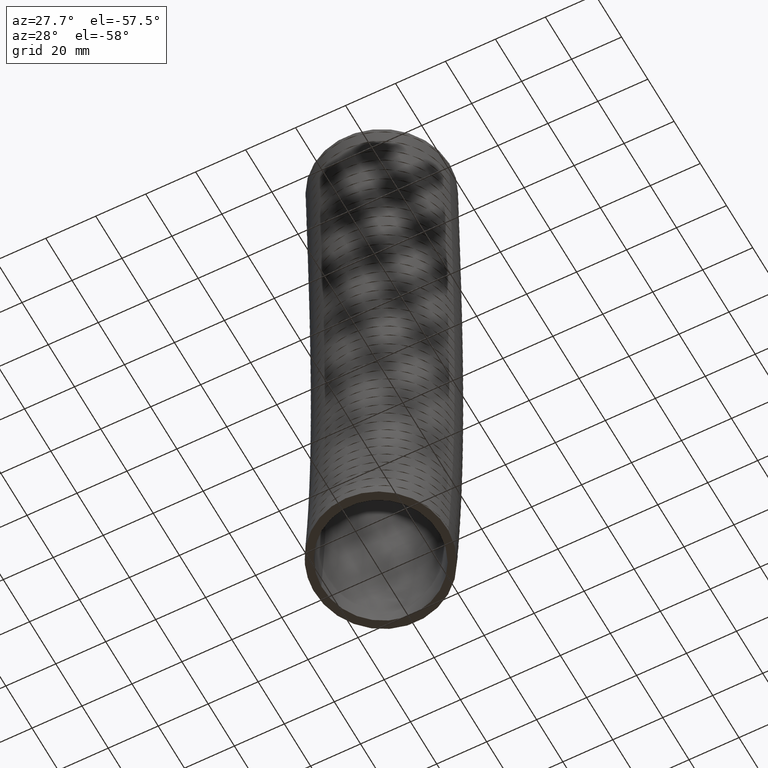
[diagram: clean part render]
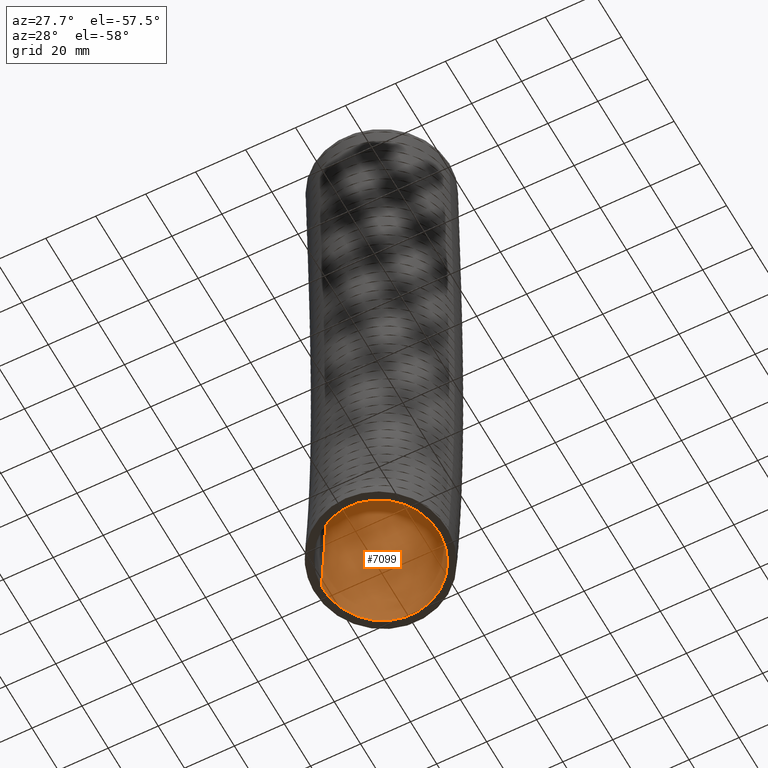
[diagram: same view with one face highlighted and labeled with its STEP entity id]
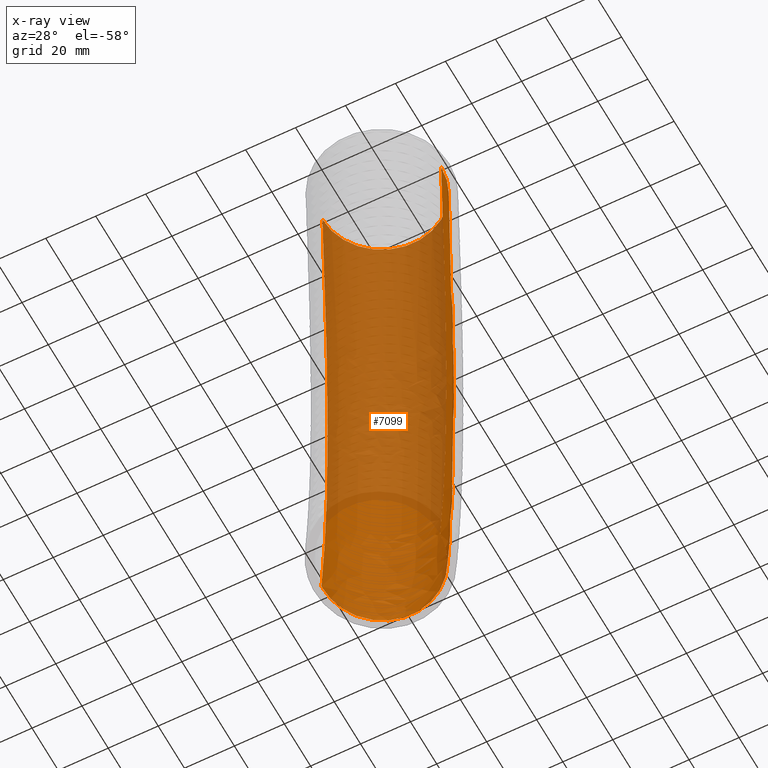
[diagram: x-ray of the same camera — body ghosted, the highlighted face saturated]
A machine part, auxiliary view. The second image highlights one B-rep face of the part: STEP entity #7099.
The next image is the same camera in x-ray: the body ghosted, the highlighted face saturated — about 68% of this face is hidden behind the body in this view.
In plain terms, the highlighted face is a freeform B-spline surface patch.
Its self-contained STEP definition (entity closure, byte-faithful):
#7079 = ORIENTED_EDGE ( 'NONE', *, *, #7105, .T. ) ;
#7081 = EDGE_CURVE ( 'NONE', #7103, #7100, #19690, .T. ) ;
#7085 = EDGE_CURVE ( 'NONE', #7100, #7114, #19679, .T. ) ;
#7086 = EDGE_LOOP ( 'NONE', ( #7087, #7079, #7094, #7091 ) ) ;
#7087 = ORIENTED_EDGE ( 'NONE', *, *, #7098, .T. ) ;
#7091 = ORIENTED_EDGE ( 'NONE', *, *, #7081, .F. ) ;
#7094 = ORIENTED_EDGE ( 'NONE', *, *, #7085, .F. ) ;
#7098 = EDGE_CURVE ( 'NONE', #7103, #7106, #19668, .T. ) ;
#7099 = ADVANCED_FACE ( 'NONE', ( #19662 ), #19691, .F. ) ;
#7100 = VERTEX_POINT ( 'NONE', #19693 ) ;
#7103 = VERTEX_POINT ( 'NONE', #19756 ) ;
#7105 = EDGE_CURVE ( 'NONE', #7106, #7114, #19753, .T. ) ;
#7106 = VERTEX_POINT ( 'NONE', #19755 ) ;
#7114 = VERTEX_POINT ( 'NONE', #19906 ) ;
#19662 = FACE_OUTER_BOUND ( 'NONE', #7086, .T. ) ;
#19663 = DIRECTION ( 'NONE',  ( 1.000000000000000000, 0.0000000000000000000, 0.0000000000000000000 ) ) ;
#19664 = DIRECTION ( 'NONE',  ( 0.0000000000000000000, 0.0000000000000000000, 1.000000000000000000 ) ) ;
#19666 = CARTESIAN_POINT ( 'NONE',  ( 0.0000000000000000000, 0.0000000000000000000, 0.0000000000000000000 ) ) ;
#19667 = AXIS2_PLACEMENT_3D ( 'NONE', #19666, #19664, #19663 ) ;
#19668 = CIRCLE ( 'NONE', #19667, 0.9350000000000001600 ) ;
#19675 = DIRECTION ( 'NONE',  ( 1.000000000000000000, 0.0000000000000000000, 0.0000000000000000000 ) ) ;
#19676 = DIRECTION ( 'NONE',  ( 0.0000000000000000000, 0.1340072641038699800, 0.9909803495364555300 ) ) ;
#19677 = CARTESIAN_POINT ( 'NONE',  ( 0.0000000000000000000, -0.02999999999999988400, -9.569999999999996700 ) ) ;
#19678 = AXIS2_PLACEMENT_3D ( 'NONE', #19677, #19676, #19675 ) ;
#19679 = CIRCLE ( 'NONE', #19678, 0.9350000000000000500 ) ;
#19683 = CARTESIAN_POINT ( 'NONE',  ( 0.9350000000000000500, -0.02999999999999988400, -9.569999999999996700 ) ) ;
#19684 = CARTESIAN_POINT ( 'NONE',  ( 0.9349999999999998300, -0.01282253193203170200, -9.380021792021830500 ) ) ;
#19685 = CARTESIAN_POINT ( 'NONE',  ( 0.9349999999999997200, 0.1136175452062334300, -7.981628316551387500 ) ) ;
#19686 = CARTESIAN_POINT ( 'NONE',  ( 0.9349999999999997200, 0.2122813731536104000, -4.795410929656176400 ) ) ;
#19687 = CARTESIAN_POINT ( 'NONE',  ( 0.9350000000000001600, 0.07923988111738790300, -1.790019474294677300 ) ) ;
#19688 = CARTESIAN_POINT ( 'NONE',  ( 0.9350000000000001600, 0.0000000000000000000, 0.0000000000000000000 ) ) ;
#19690 = B_SPLINE_CURVE_WITH_KNOTS ( 'NONE', 3,
 ( #19688, #19687, #19686, #19685, #19684, #19683 ),
 .UNSPECIFIED., .F., .F.,
 ( 4, 1, 1, 4 ),
 ( 0.0000000000000000000, 0.5600000000000001600, 0.9402239691641354200, 1.000000000000000000 ),
 .UNSPECIFIED. ) ;
#19691 =( BOUNDED_SURFACE ( )  B_SPLINE_SURFACE ( 3, 3, ( 
 ( #19734, #19733, #19732, #19731, #19730, #19729 ),
 ( #19728, #19727, #19726, #19725, #19724, #19723 ),
 ( #19722, #19721, #19720, #19719, #19718, #19717 ),
 ( #19716, #19715, #19714, #19713, #19712, #19711 ),
 ( #19710, #19709, #19708, #19707, #19706, #19705 ),
 ( #19704, #19768, #19767, #19766, #19765, #19764 ),
 ( #19763, #19762, #19761, #19760, #19759, #19758 ) ),
 .UNSPECIFIED., .F., .F., .F. ) 
 B_SPLINE_SURFACE_WITH_KNOTS ( ( 4, 3, 4 ),
 ( 4, 1, 1, 4 ),
 ( 0.0000000000000000000, 0.5000000000000000000, 1.000000000000000000 ),
 ( 0.0000000000000000000, 0.5600000000000001600, 0.9402239691641354200, 1.000000000000000000 ),
 .UNSPECIFIED. ) 
 GEOMETRIC_REPRESENTATION_ITEM ( )  RATIONAL_B_SPLINE_SURFACE ( (
 ( 1.000000000000000000, 1.000000000000000000, 1.000000000000000200, 1.000000000000000200, 1.000000000000000200, 1.000000000000000200),
 ( 0.3333333333333333100, 0.3333333333333333100, 0.3333333333333332600, 0.3333333333333334300, 0.3333333333333333700, 0.3333333333333333700),
 ( 0.3333333333333333100, 0.3333333333333333100, 0.3333333333333332600, 0.3333333333333334300, 0.3333333333333333700, 0.3333333333333333700),
 ( 1.000000000000000000, 1.000000000000000000, 1.000000000000000200, 1.000000000000000200, 1.000000000000000200, 1.000000000000000200),
 ( 0.3333333333333333100, 0.3333333333333333100, 0.3333333333333332600, 0.3333333333333334300, 0.3333333333333333700, 0.3333333333333333700),
 ( 0.3333333333333333100, 0.3333333333333333100, 0.3333333333333332600, 0.3333333333333334300, 0.3333333333333333700, 0.3333333333333333700),
 ( 1.000000000000000000, 1.000000000000000000, 1.000000000000000200, 1.000000000000000200, 1.000000000000000200, 1.000000000000000200) ) ) 
 REPRESENTATION_ITEM ( '' )  SURFACE ( )  );
#19693 = CARTESIAN_POINT ( 'NONE',  ( 0.9350000000000000500, -0.02999999999999988400, -9.569999999999996700 ) ) ;
#19704 = CARTESIAN_POINT ( 'NONE',  ( 0.9350000000000001600, 1.870000000000000300, 0.0000000000000000000 ) ) ;
#19705 = CARTESIAN_POINT ( 'NONE',  ( -0.9349999999999997200, 1.823133253633172600, -9.820593583874233100 ) ) ;
#19706 = CARTESIAN_POINT ( 'NONE',  ( -0.9349999999999997200, 1.841124632526707900, -9.622043957505537600 ) ) ;
#19707 = CARTESIAN_POINT ( 'NONE',  ( -0.9349999999999995000, 1.973555752533524100, -8.160557900625834200 ) ) ;
#19708 = CARTESIAN_POINT ( 'NONE',  ( -0.9349999999999995000, 2.084916673329968900, -4.837829543110593100 ) ) ;
#19709 = CARTESIAN_POINT ( 'NONE',  ( -0.9349999999999998300, 1.950223579637805300, -1.805853392444716400 ) ) ;
#19710 = CARTESIAN_POINT ( 'NONE',  ( -0.9349999999999998300, 1.870000000000000300, 0.0000000000000000000 ) ) ;
#19711 = CARTESIAN_POINT ( 'NONE',  ( -0.9349999999999999400, -0.02999999999999981500, -9.569999999999996700 ) ) ;
#19712 = CARTESIAN_POINT ( 'NONE',  ( -0.9349999999999999400, -0.01282253193203158400, -9.380021792021830500 ) ) ;
#19713 = CARTESIAN_POINT ( 'NONE',  ( -0.9349999999999998300, 0.1136175452062335400, -7.981628316551387500 ) ) ;
#19714 = CARTESIAN_POINT ( 'NONE',  ( -0.9349999999999998300, 0.2122813731536105100, -4.795410929656176400 ) ) ;
#19715 = CARTESIAN_POINT ( 'NONE',  ( -0.9350000000000001600, 0.07923988111738800000, -1.790019474294677300 ) ) ;
#19716 = CARTESIAN_POINT ( 'NONE',  ( -0.9350000000000001600, 1.145044757202775300E-016, 0.0000000000000000000 ) ) ;
#19717 = CARTESIAN_POINT ( 'NONE',  ( -0.9350000000000001600, -1.883133253633172400, -9.319406416125758600 ) ) ;
#19718 = CARTESIAN_POINT ( 'NONE',  ( -0.9350000000000001600, -1.866769696390770700, -9.137999626538126900 ) ) ;
#19719 = CARTESIAN_POINT ( 'NONE',  ( -0.9350000000000000500, -1.746320662121057400, -7.802698732476939000 ) ) ;
#19720 = CARTESIAN_POINT ( 'NONE',  ( -0.9350000000000002800, -1.660353927022747600, -4.752992316201762400 ) ) ;
#19721 = CARTESIAN_POINT ( 'NONE',  ( -0.9350000000000001600, -1.791743817403029600, -1.774185556144637100 ) ) ;
#19722 = CARTESIAN_POINT ( 'NONE',  ( -0.9350000000000001600, -1.870000000000000300, 0.0000000000000000000 ) ) ;
#19723 = CARTESIAN_POINT ( 'NONE',  ( 0.9350000000000000500, -1.883133253633172400, -9.319406416125758600 ) ) ;
#19724 = CARTESIAN_POINT ( 'NONE',  ( 0.9350000000000000500, -1.866769696390770700, -9.137999626538126900 ) ) ;
#19725 = CARTESIAN_POINT ( 'NONE',  ( 0.9349999999999998300, -1.746320662121057400, -7.802698732476939000 ) ) ;
#19726 = CARTESIAN_POINT ( 'NONE',  ( 0.9349999999999999400, -1.660353927022747600, -4.752992316201762400 ) ) ;
#19727 = CARTESIAN_POINT ( 'NONE',  ( 0.9350000000000001600, -1.791743817403029600, -1.774185556144637100 ) ) ;
#19728 = CARTESIAN_POINT ( 'NONE',  ( 0.9350000000000001600, -1.870000000000000300, 0.0000000000000000000 ) ) ;
#19729 = CARTESIAN_POINT ( 'NONE',  ( 0.9349999999999999400, -0.02999999999999993000, -9.569999999999996700 ) ) ;
#19730 = CARTESIAN_POINT ( 'NONE',  ( 0.9349999999999999400, -0.01282253193203170200, -9.380021792021830500 ) ) ;
#19731 = CARTESIAN_POINT ( 'NONE',  ( 0.9349999999999998300, 0.1136175452062334300, -7.981628316551387500 ) ) ;
#19732 = CARTESIAN_POINT ( 'NONE',  ( 0.9349999999999998300, 0.2122813731536103700, -4.795410929656176400 ) ) ;
#19733 = CARTESIAN_POINT ( 'NONE',  ( 0.9350000000000001600, 0.07923988111738790300, -1.790019474294677300 ) ) ;
#19734 = CARTESIAN_POINT ( 'NONE',  ( 0.9350000000000001600, 0.0000000000000000000, 0.0000000000000000000 ) ) ;
#19743 = CARTESIAN_POINT ( 'NONE',  ( -0.9350000000000001600, -0.02999999999999995700, -9.569999999999996700 ) ) ;
#19744 = CARTESIAN_POINT ( 'NONE',  ( -0.9349999999999998300, -0.01282253193203158500, -9.380021792021830500 ) ) ;
#19745 = CARTESIAN_POINT ( 'NONE',  ( -0.9349999999999997200, 0.1136175452062335600, -7.981628316551387500 ) ) ;
#19746 = CARTESIAN_POINT ( 'NONE',  ( -0.9349999999999997200, 0.2122813731536105400, -4.795410929656176400 ) ) ;
#19747 = CARTESIAN_POINT ( 'NONE',  ( -0.9350000000000001600, 0.07923988111738800000, -1.790019474294677300 ) ) ;
#19748 = CARTESIAN_POINT ( 'NONE',  ( -0.9350000000000001600, 1.145044757202775300E-016, 0.0000000000000000000 ) ) ;
#19753 = B_SPLINE_CURVE_WITH_KNOTS ( 'NONE', 3,
 ( #19748, #19747, #19746, #19745, #19744, #19743 ),
 .UNSPECIFIED., .F., .F.,
 ( 4, 1, 1, 4 ),
 ( 0.0000000000000000000, 0.5600000000000001600, 0.9402239691641354200, 1.000000000000000000 ),
 .UNSPECIFIED. ) ;
#19755 = CARTESIAN_POINT ( 'NONE',  ( -0.9350000000000001600, 1.145044757202775300E-016, 0.0000000000000000000 ) ) ;
#19756 = CARTESIAN_POINT ( 'NONE',  ( 0.9350000000000001600, 0.0000000000000000000, 0.0000000000000000000 ) ) ;
#19758 = CARTESIAN_POINT ( 'NONE',  ( 0.9349999999999999400, -0.02999999999999993000, -9.569999999999996700 ) ) ;
#19759 = CARTESIAN_POINT ( 'NONE',  ( 0.9349999999999999400, -0.01282253193203170200, -9.380021792021830500 ) ) ;
#19760 = CARTESIAN_POINT ( 'NONE',  ( 0.9349999999999998300, 0.1136175452062334300, -7.981628316551387500 ) ) ;
#19761 = CARTESIAN_POINT ( 'NONE',  ( 0.9349999999999998300, 0.2122813731536103700, -4.795410929656176400 ) ) ;
#19762 = CARTESIAN_POINT ( 'NONE',  ( 0.9350000000000001600, 0.07923988111738790300, -1.790019474294677300 ) ) ;
#19763 = CARTESIAN_POINT ( 'NONE',  ( 0.9350000000000001600, 0.0000000000000000000, 0.0000000000000000000 ) ) ;
#19764 = CARTESIAN_POINT ( 'NONE',  ( 0.9350000000000000500, 1.823133253633172600, -9.820593583874233100 ) ) ;
#19765 = CARTESIAN_POINT ( 'NONE',  ( 0.9350000000000000500, 1.841124632526707900, -9.622043957505537600 ) ) ;
#19766 = CARTESIAN_POINT ( 'NONE',  ( 0.9349999999999998300, 1.973555752533524100, -8.160557900625834200 ) ) ;
#19767 = CARTESIAN_POINT ( 'NONE',  ( 0.9349999999999999400, 2.084916673329968900, -4.837829543110593100 ) ) ;
#19768 = CARTESIAN_POINT ( 'NONE',  ( 0.9350000000000001600, 1.950223579637805300, -1.805853392444716400 ) ) ;
#19906 = CARTESIAN_POINT ( 'NONE',  ( -0.9350000000000001600, -0.02999999999999995700, -9.569999999999996700 ) ) ;